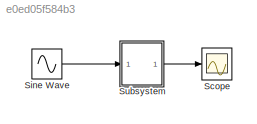
MODEL slx_e0ed05f584b3
KIND model
CONFIG AbsTol = auto
CONFIG EnableMultiTasking = off
CONFIG FixedStep = 0.00005
CONFIG MaxStep = auto
CONFIG MinStep = auto
CONFIG RelTol = 1e-3
CONFIG SampleTimeConstraint = Unconstrained
CONFIG SolverName = FixedStepDiscrete
CONFIG StartTime = 0.0
CONFIG StopTime = 1
BLOCK [Scope] Scope
  Floating = off
  NumInputPorts = 1
  ScopeSpecificationString = Simulink.scopes.TimeScopeBlockCfg('CurrentConfiguration', extmgr.ConfigurationSet(extmgr.Configuration('Core','General UI',true),extmgr.Configuration('Core','Source UI',true),extmgr.Configuration('Sources','WiredSimulink',true),extmgr.Configuration('Visuals','Time Domain',true,'SerializedDisplays',{struct('MinYLimReal','-0.10518','MaxYLimReal','0.94666','YLabelReal','','MinYLimMag','0.00000','MaxY...<+1362ch>
BLOCK [Sin] Sine Wave
  Frequency = 100
  SampleTime = 0.00005
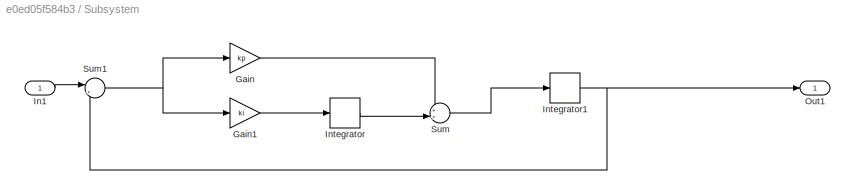
BLOCK [SubSystem] Subsystem
BLOCK [Gain] Subsystem/Gain
  Gain = kp
BLOCK [Gain] Subsystem/Gain1
  Gain = ki
BLOCK [Inport] Subsystem/In1
BLOCK [DiscreteIntegrator] Subsystem/Integrator
  ICPrevOutput = DiscIntNeverNeededParam
  ICPrevScaledInput = DiscIntNeverNeededParam
  SampleTime = 0.00005
BLOCK [DiscreteIntegrator] Subsystem/Integrator1
  ICPrevOutput = DiscIntNeverNeededParam
  ICPrevScaledInput = DiscIntNeverNeededParam
  SampleTime = 0.00005
BLOCK [Outport] Subsystem/Out1
BLOCK [Sum] Subsystem/Sum
  Inputs = ++|
BLOCK [Sum] Subsystem/Sum1
  Inputs = |+-
LINE Sine Wave:1 -> Subsystem:1
LINE Subsystem/Gain1:1 -> Subsystem/Integrator:1
LINE Subsystem/Gain:1 -> Subsystem/Sum:1
LINE Subsystem/In1:1 -> Subsystem/Sum1:1
NET Subsystem/Integrator1:1 -> Subsystem/Out1:1, Subsystem/Sum1:2
LINE Subsystem/Integrator:1 -> Subsystem/Sum:2
NET Subsystem/Sum1:1 -> Subsystem/Gain1:1, Subsystem/Gain:1
LINE Subsystem/Sum:1 -> Subsystem/Integrator1:1
LINE Subsystem:1 -> Scope:1
note: NET lines group one-source signal fan-out (src -> all destinations, sorted); 1:1 wires keep LINE
